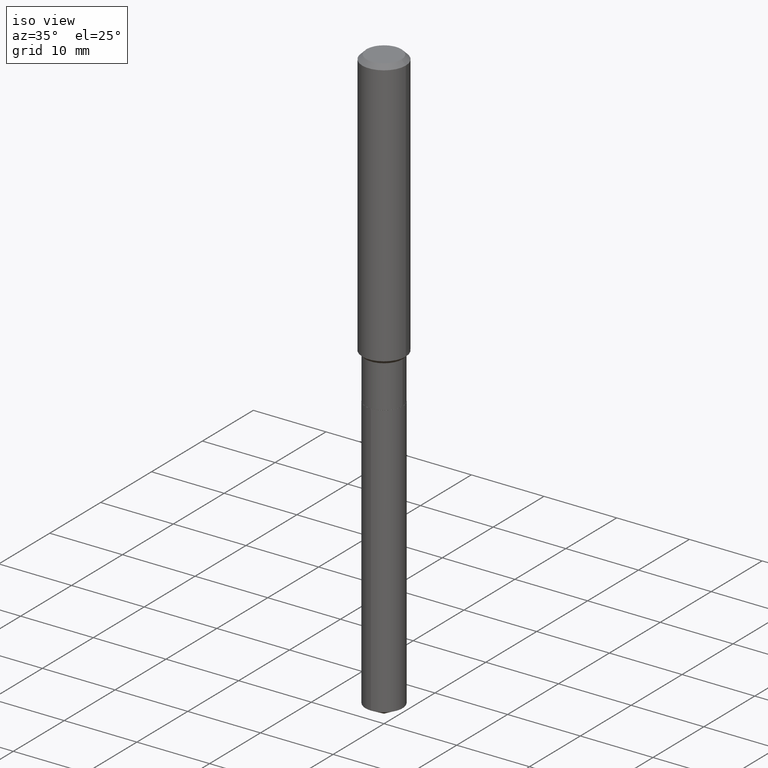
[diagram: clean part render]
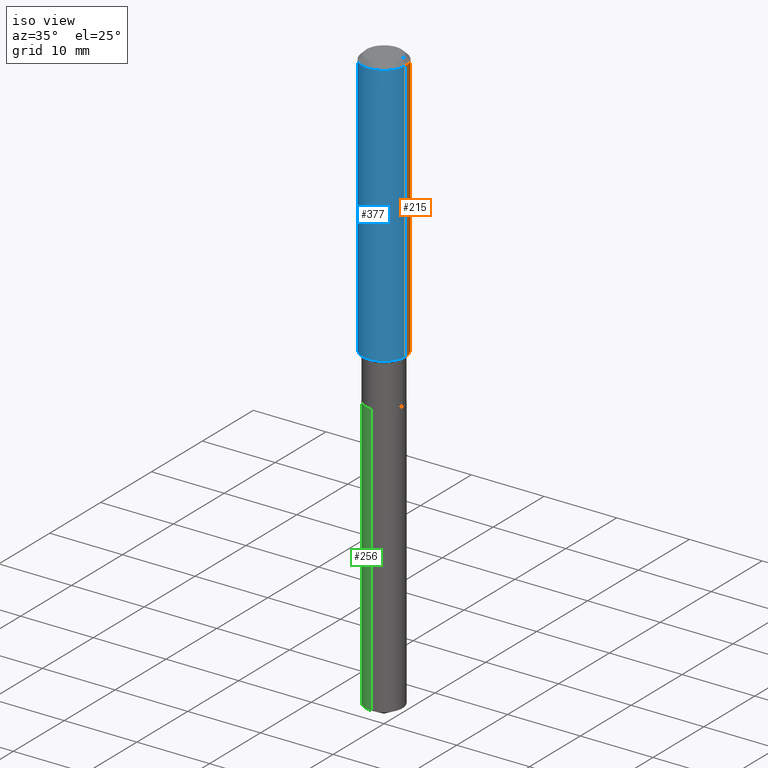
[diagram: same view with three faces highlighted in distinct colors, each labeled with its STEP entity id]
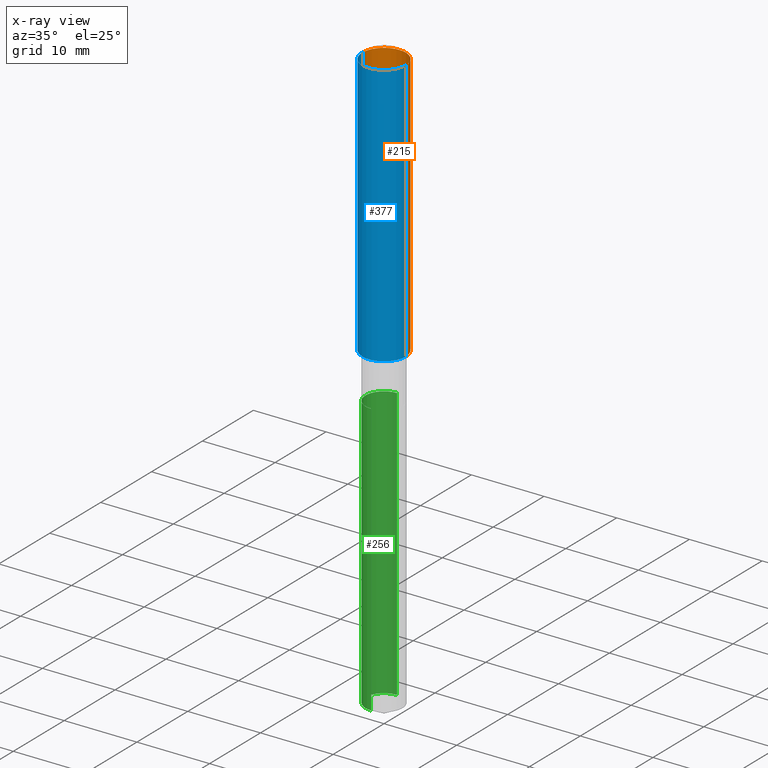
[diagram: x-ray of the same camera — body ghosted, the three highlighted faces saturated]
A machine part, iso view with three faces highlighted in distinct colors.
The next image is the same camera in x-ray (body ghosted, the three faces saturated) — at least one of them is partly hidden behind the body in this view.
Their STEP definitions:

[orange] entity #215 — the highlighted cylindrical surface (edge-blend (fillet) strip) has radius 2.9997 mm, axis along (-0, 0, 1).
#27 = DIRECTION ( 'NONE',  ( -2.445468806185136877E-29, 3.491481338843145188E-15, 1.000000000000000000 ) ) ;
#33 = DIRECTION ( 'NONE',  ( -2.445468806185136877E-29, 3.491481338843145188E-15, 1.000000000000000000 ) ) ;
#36 = VERTEX_POINT ( 'NONE', #80 ) ;
#58 = CIRCLE ( 'NONE', #275, 0.1180999999999999966 ) ;
#66 = LINE ( 'NONE', #369, #396 ) ;
#74 = VECTOR ( 'NONE', #33, 39.37007874015748143 ) ;
#80 = CARTESIAN_POINT ( 'NONE',  ( -0.1181000000000001632, -4.217212303979963532E-15, -1.448199999999999932 ) ) ;
#87 = ORIENTED_EDGE ( 'NONE', *, *, #289, .T. ) ;
#117 = DIRECTION ( 'NONE',  ( -2.445468806185136597E-29, 3.491481338843145583E-15, 1.000000000000000000 ) ) ;
#120 = CARTESIAN_POINT ( 'NONE',  ( 3.541527925117314653E-29, -5.056363274912643307E-15, -1.448199999999999932 ) ) ;
#127 = VERTEX_POINT ( 'NONE', #330 ) ;
#139 = CARTESIAN_POINT ( 'NONE',  ( 0.000000000000000000, 0.000000000000000000, 0.000000000000000000 ) ) ;
#151 = ORIENTED_EDGE ( 'NONE', *, *, #453, .T. ) ;
#199 = DIRECTION ( 'NONE',  ( -2.445468806185136597E-29, 3.491481338843145583E-15, 1.000000000000000000 ) ) ;
#208 = CARTESIAN_POINT ( 'NONE',  ( 0.1181000000000001632, -5.881051167147392359E-15, -1.448199999999999932 ) ) ;
#215 = ADVANCED_FACE ( 'NONE', ( #251 ), #364, .T. ) ;
#251 = FACE_OUTER_BOUND ( 'NONE', #312, .T. ) ;
#255 = CARTESIAN_POINT ( 'NONE',  ( 0.1180999999999999966, -9.071566814582237199E-16, -0.02362000000000014088 ) ) ;
#261 = VERTEX_POINT ( 'NONE', #208 ) ;
#269 = DIRECTION ( 'NONE',  ( 1.000000000000000000, -6.982962677686266711E-15, 0.000000000000000000 ) ) ;
#275 = AXIS2_PLACEMENT_3D ( 'NONE', #277, #199, #269 ) ;
#277 = CARTESIAN_POINT ( 'NONE',  ( 5.776197320209327532E-31, -8.246878922347559293E-17, -0.02362000000000014088 ) ) ;
#280 = ORIENTED_EDGE ( 'NONE', *, *, #378, .F. ) ;
#289 = EDGE_CURVE ( 'NONE', #36, #127, #442, .T. ) ;
#291 = DIRECTION ( 'NONE',  ( -2.445468806185136597E-29, 3.491481338843145583E-15, 1.000000000000000000 ) ) ;
#293 = AXIS2_PLACEMENT_3D ( 'NONE', #139, #291, #434 ) ;
#311 = VERTEX_POINT ( 'NONE', #255 ) ;
#312 = EDGE_LOOP ( 'NONE', ( #151, #87, #316, #280 ) ) ;
#316 = ORIENTED_EDGE ( 'NONE', *, *, #475, .F. ) ;
#329 = CIRCLE ( 'NONE', #403, 0.1181000000000001632 ) ;
#330 = CARTESIAN_POINT ( 'NONE',  ( -0.1180999999999999966, -1.730265061135379805E-15, -0.02362000000000014088 ) ) ;
#364 = CYLINDRICAL_SURFACE ( 'NONE', #293, 0.1181000000000000799 ) ;
#369 = CARTESIAN_POINT ( 'NONE',  ( 0.1181000000000000799, -8.246878922347486570E-16, 5.758764772215004644E-30 ) ) ;
#374 = CARTESIAN_POINT ( 'NONE',  ( -0.1181000000000000799, 8.391509709326788873E-16, -5.809262341591047988E-30 ) ) ;
#378 = EDGE_CURVE ( 'NONE', #261, #311, #66, .T. ) ;
#389 = DIRECTION ( 'NONE',  ( 1.000000000000000000, -6.982962677686263555E-15, 0.000000000000000000 ) ) ;
#396 = VECTOR ( 'NONE', #27, 39.37007874015748143 ) ;
#403 = AXIS2_PLACEMENT_3D ( 'NONE', #120, #117, #389 ) ;
#434 = DIRECTION ( 'NONE',  ( 1.000000000000000000, -6.982962677686266711E-15, 4.876176775795936353E-29 ) ) ;
#442 = LINE ( 'NONE', #374, #74 ) ;
#453 = EDGE_CURVE ( 'NONE', #261, #36, #329, .T. ) ;
#475 = EDGE_CURVE ( 'NONE', #311, #127, #58, .T. ) ;

[blue] entity #377 — the highlighted cylindrical surface (edge-blend (fillet) strip) has radius 2.9997 mm, axis along (-0, 0, 1).
#8 = AXIS2_PLACEMENT_3D ( 'NONE', #262, #409, #144 ) ;
#13 = EDGE_LOOP ( 'NONE', ( #342, #65, #238, #200 ) ) ;
#27 = DIRECTION ( 'NONE',  ( -2.445468806185136877E-29, 3.491481338843145188E-15, 1.000000000000000000 ) ) ;
#33 = DIRECTION ( 'NONE',  ( -2.445468806185136877E-29, 3.491481338843145188E-15, 1.000000000000000000 ) ) ;
#36 = VERTEX_POINT ( 'NONE', #80 ) ;
#64 = FACE_OUTER_BOUND ( 'NONE', #13, .T. ) ;
#65 = ORIENTED_EDGE ( 'NONE', *, *, #372, .T. ) ;
#66 = LINE ( 'NONE', #369, #396 ) ;
#74 = VECTOR ( 'NONE', #33, 39.37007874015748143 ) ;
#80 = CARTESIAN_POINT ( 'NONE',  ( -0.1181000000000001632, -4.217212303979963532E-15, -1.448199999999999932 ) ) ;
#123 = CIRCLE ( 'NONE', #8, 0.1181000000000001632 ) ;
#127 = VERTEX_POINT ( 'NONE', #330 ) ;
#131 = AXIS2_PLACEMENT_3D ( 'NONE', #328, #473, #143 ) ;
#143 = DIRECTION ( 'NONE',  ( 1.000000000000000000, -6.982962677686266711E-15, 0.000000000000000000 ) ) ;
#144 = DIRECTION ( 'NONE',  ( 1.000000000000000000, -6.982962677686263555E-15, 0.000000000000000000 ) ) ;
#200 = ORIENTED_EDGE ( 'NONE', *, *, #246, .F. ) ;
#208 = CARTESIAN_POINT ( 'NONE',  ( 0.1181000000000001632, -5.881051167147392359E-15, -1.448199999999999932 ) ) ;
#238 = ORIENTED_EDGE ( 'NONE', *, *, #378, .T. ) ;
#240 = CIRCLE ( 'NONE', #131, 0.1180999999999999966 ) ;
#246 = EDGE_CURVE ( 'NONE', #127, #311, #240, .T. ) ;
#255 = CARTESIAN_POINT ( 'NONE',  ( 0.1180999999999999966, -9.071566814582237199E-16, -0.02362000000000014088 ) ) ;
#261 = VERTEX_POINT ( 'NONE', #208 ) ;
#262 = CARTESIAN_POINT ( 'NONE',  ( 3.541527925117314653E-29, -5.056363274912643307E-15, -1.448199999999999932 ) ) ;
#289 = EDGE_CURVE ( 'NONE', #36, #127, #442, .T. ) ;
#311 = VERTEX_POINT ( 'NONE', #255 ) ;
#328 = CARTESIAN_POINT ( 'NONE',  ( 5.776197320209327532E-31, -8.246878922347559293E-17, -0.02362000000000014088 ) ) ;
#330 = CARTESIAN_POINT ( 'NONE',  ( -0.1180999999999999966, -1.730265061135379805E-15, -0.02362000000000014088 ) ) ;
#339 = CYLINDRICAL_SURFACE ( 'NONE', #411, 0.1181000000000000799 ) ;
#342 = ORIENTED_EDGE ( 'NONE', *, *, #289, .F. ) ;
#369 = CARTESIAN_POINT ( 'NONE',  ( 0.1181000000000000799, -8.246878922347486570E-16, 5.758764772215004644E-30 ) ) ;
#372 = EDGE_CURVE ( 'NONE', #36, #261, #123, .T. ) ;
#374 = CARTESIAN_POINT ( 'NONE',  ( -0.1181000000000000799, 8.391509709326788873E-16, -5.809262341591047988E-30 ) ) ;
#377 = ADVANCED_FACE ( 'NONE', ( #64 ), #339, .T. ) ;
#378 = EDGE_CURVE ( 'NONE', #261, #311, #66, .T. ) ;
#396 = VECTOR ( 'NONE', #27, 39.37007874015748143 ) ;
#405 = DIRECTION ( 'NONE',  ( 1.000000000000000000, -6.982962677686266711E-15, 4.876176775795936353E-29 ) ) ;
#409 = DIRECTION ( 'NONE',  ( -2.445468806185136597E-29, 3.491481338843145583E-15, 1.000000000000000000 ) ) ;
#411 = AXIS2_PLACEMENT_3D ( 'NONE', #437, #486, #405 ) ;
#437 = CARTESIAN_POINT ( 'NONE',  ( 0.000000000000000000, 0.000000000000000000, 0.000000000000000000 ) ) ;
#442 = LINE ( 'NONE', #374, #74 ) ;
#473 = DIRECTION ( 'NONE',  ( -2.445468806185136597E-29, 3.491481338843145583E-15, 1.000000000000000000 ) ) ;
#486 = DIRECTION ( 'NONE',  ( -2.445468806185136597E-29, 3.491481338843145583E-15, 1.000000000000000000 ) ) ;

[green] entity #256 — the highlighted cylindrical surface (edge-blend (fillet) strip) has radius 2.5502 mm, axis along (-0, 0, 1).
#6 = EDGE_LOOP ( 'NONE', ( #276, #163, #28, #160 ) ) ;
#28 = ORIENTED_EDGE ( 'NONE', *, *, #152, .T. ) ;
#42 = CARTESIAN_POINT ( 'NONE',  ( -7.010894528396234726E-16, -0.1004000000000110776, -3.174916373061186459 ) ) ;
#61 = CARTESIAN_POINT ( 'NONE',  ( -7.010894528396596616E-16, -0.1004000000000059289, -1.696800000000000086 ) ) ;
#69 = CARTESIAN_POINT ( 'NONE',  ( 4.149471470334940863E-29, -5.924345535749050380E-15, -1.696800000000000308 ) ) ;
#73 = DIRECTION ( 'NONE',  ( -2.445437338311188488E-29, 3.491526402629679676E-15, 1.000000000000000000 ) ) ;
#84 = AXIS2_PLACEMENT_3D ( 'NONE', #426, #245, #392 ) ;
#102 = LINE ( 'NONE', #61, #257 ) ;
#106 = VERTEX_POINT ( 'NONE', #254 ) ;
#110 = DIRECTION ( 'NONE',  ( -6.982962677686266711E-15, -1.000000000000000000, 2.720964137115799877E-15 ) ) ;
#121 = VERTEX_POINT ( 'NONE', #356 ) ;
#130 = FACE_OUTER_BOUND ( 'NONE', #6, .T. ) ;
#140 = AXIS2_PLACEMENT_3D ( 'NONE', #308, #451, #422 ) ;
#146 = EDGE_CURVE ( 'NONE', #482, #106, #175, .T. ) ;
#152 = EDGE_CURVE ( 'NONE', #385, #121, #102, .T. ) ;
#160 = ORIENTED_EDGE ( 'NONE', *, *, #309, .F. ) ;
#163 = ORIENTED_EDGE ( 'NONE', *, *, #439, .T. ) ;
#175 = LINE ( 'NONE', #178, #252 ) ;
#178 = CARTESIAN_POINT ( 'NONE',  ( 7.133849067031820241E-16, 0.1003999999999940773, -1.696800000000000530 ) ) ;
#245 = DIRECTION ( 'NONE',  ( -2.445437338311188488E-29, 3.491526402629679676E-15, 1.000000000000000000 ) ) ;
#252 = VECTOR ( 'NONE', #321, 39.37007874015748143 ) ;
#254 = CARTESIAN_POINT ( 'NONE',  ( 7.133849067032184103E-16, 0.1003999999999940773, -1.696800000000000530 ) ) ;
#256 = ADVANCED_FACE ( 'NONE', ( #130 ), #283, .T. ) ;
#257 = VECTOR ( 'NONE', #324, 39.37007874015748143 ) ;
#276 = ORIENTED_EDGE ( 'NONE', *, *, #146, .F. ) ;
#283 = CYLINDRICAL_SURFACE ( 'NONE', #84, 0.1004000000000000031 ) ;
#308 = CARTESIAN_POINT ( 'NONE',  ( 7.764112439387876695E-29, -1.108522787845140694E-14, -3.174916373061187347 ) ) ;
#309 = EDGE_CURVE ( 'NONE', #106, #121, #464, .T. ) ;
#321 = DIRECTION ( 'NONE',  ( -2.445437338311188488E-29, 3.491526402629679676E-15, 1.000000000000000000 ) ) ;
#324 = DIRECTION ( 'NONE',  ( -2.445437338311188488E-29, 3.491526402629679676E-15, 1.000000000000000000 ) ) ;
#346 = CARTESIAN_POINT ( 'NONE',  ( 7.133849067032180158E-16, 0.1003999999999889148, -3.174916373061187791 ) ) ;
#351 = CIRCLE ( 'NONE', #140, 0.1004000000000000031 ) ;
#356 = CARTESIAN_POINT ( 'NONE',  ( -7.010894528396596616E-16, -0.1004000000000059289, -1.696800000000000086 ) ) ;
#385 = VERTEX_POINT ( 'NONE', #42 ) ;
#392 = DIRECTION ( 'NONE',  ( -6.982962677686266711E-15, -1.000000000000000000, 2.720964137115799877E-15 ) ) ;
#422 = DIRECTION ( 'NONE',  ( -6.982962677686266711E-15, -1.000000000000000000, 5.441928274231599754E-15 ) ) ;
#426 = CARTESIAN_POINT ( 'NONE',  ( 4.149471470334940863E-29, -5.924345535749050380E-15, -1.696800000000000308 ) ) ;
#439 = EDGE_CURVE ( 'NONE', #482, #385, #351, .T. ) ;
#451 = DIRECTION ( 'NONE',  ( -2.445437338311188488E-29, 3.491526402629679676E-15, 1.000000000000000000 ) ) ;
#464 = CIRCLE ( 'NONE', #480, 0.1004000000000000031 ) ;
#480 = AXIS2_PLACEMENT_3D ( 'NONE', #69, #73, #110 ) ;
#482 = VERTEX_POINT ( 'NONE', #346 ) ;